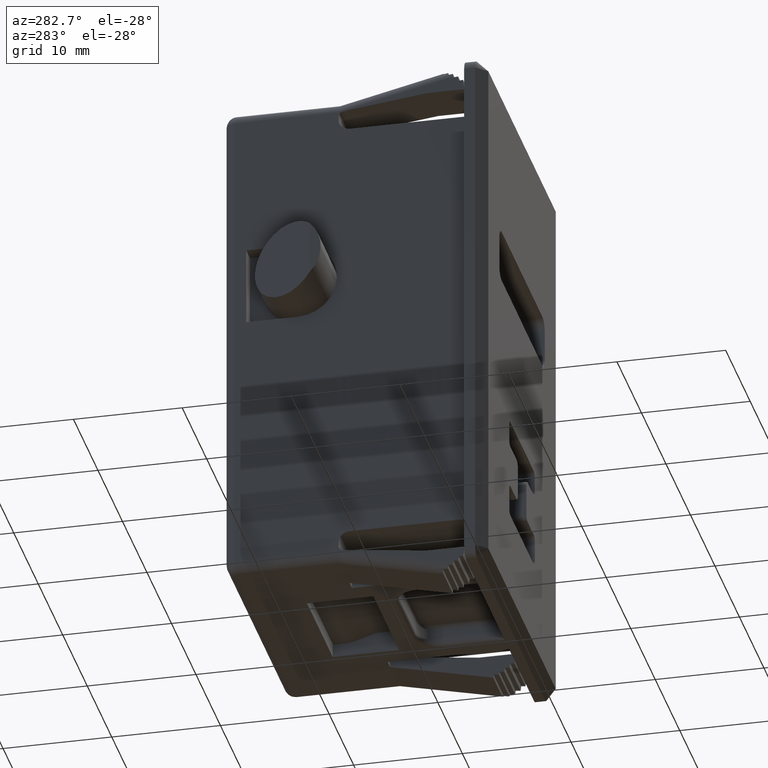
[diagram: clean part render]
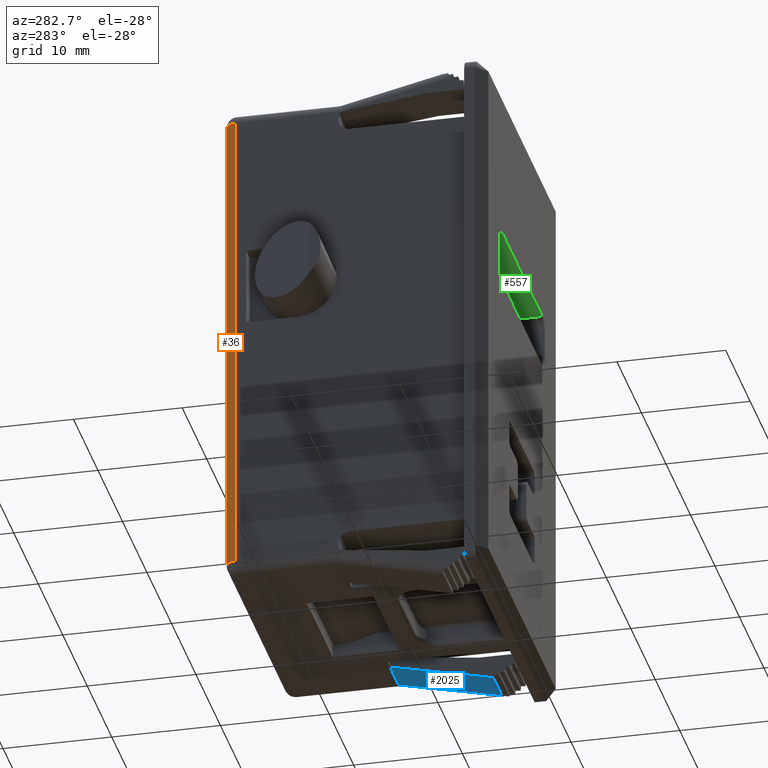
[diagram: same view with three faces highlighted in distinct colors, each labeled with its STEP entity id]
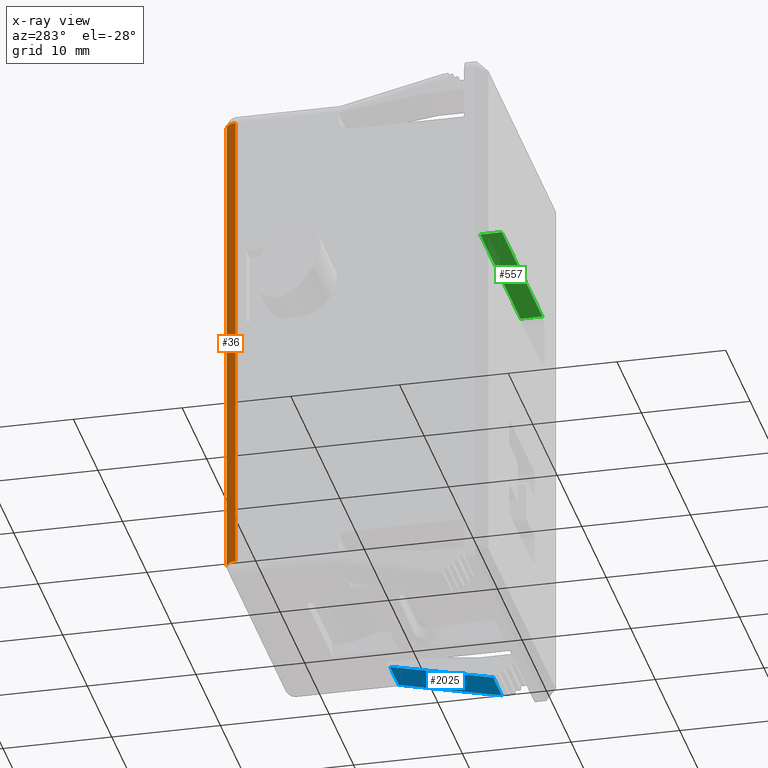
[diagram: x-ray of the same camera — body ghosted, the three highlighted faces saturated]
A machine part, auxiliary view with three faces highlighted in distinct colors.
The next image is the same camera in x-ray (body ghosted, the three faces saturated) — at least one of them is partly hidden behind the body in this view.
Their STEP definitions:

[orange] entity #36 — the highlighted cylindrical surface (edge-blend (fillet) strip) has radius 1 mm, axis along (0, 0, -1).
#36 = ADVANCED_FACE ( 'NONE', ( #1314 ), #5043, .T. ) ;
#46 = AXIS2_PLACEMENT_3D ( 'NONE', #3796, #4432, #3845 ) ;
#291 = VERTEX_POINT ( 'NONE', #1273 ) ;
#326 = EDGE_CURVE ( 'NONE', #291, #6236, #3448, .T. ) ;
#529 = CARTESIAN_POINT ( 'NONE',  ( -11.75000000000000000, 24.49999999999629800, -22.25000000000000000 ) ) ;
#593 = VECTOR ( 'NONE', #5870, 1000.000000000000000 ) ;
#599 = ORIENTED_EDGE ( 'NONE', *, *, #2885, .T. ) ;
#901 = EDGE_CURVE ( 'NONE', #6236, #1045, #4181, .T. ) ;
#1045 = VERTEX_POINT ( 'NONE', #529 ) ;
#1084 = CARTESIAN_POINT ( 'NONE',  ( -11.75000000000000000, 24.49999999999629800, 22.25000000000000000 ) ) ;
#1273 = CARTESIAN_POINT ( 'NONE',  ( -12.75000000000000000, 23.49999999999229800, 22.25000000000000000 ) ) ;
#1314 = FACE_OUTER_BOUND ( 'NONE', #3976, .T. ) ;
#1491 = DIRECTION ( 'NONE',  ( 0.0000000000000000000, 0.0000000000000000000, -1.000000000000000000 ) ) ;
#1620 = CARTESIAN_POINT ( 'NONE',  ( -12.75000000000000000, 23.49999999999229800, -22.25000000000000000 ) ) ;
#2079 = VERTEX_POINT ( 'NONE', #1084 ) ;
#2403 = ORIENTED_EDGE ( 'NONE', *, *, #326, .F. ) ;
#2885 = EDGE_CURVE ( 'NONE', #291, #2079, #6103, .T. ) ;
#3448 = LINE ( 'NONE', #4840, #593 ) ;
#3455 = ORIENTED_EDGE ( 'NONE', *, *, #901, .F. ) ;
#3796 = CARTESIAN_POINT ( 'NONE',  ( -11.75000000000000000, 23.49999999999629800, -22.25000000000000000 ) ) ;
#3845 = DIRECTION ( 'NONE',  ( -1.000000000000000000, 0.0000000000000000000, 0.0000000000000000000 ) ) ;
#3976 = EDGE_LOOP ( 'NONE', ( #599, #5726, #3455, #2403 ) ) ;
#4181 = CIRCLE ( 'NONE', #46, 1.000000000000000900 ) ;
#4432 = DIRECTION ( 'NONE',  ( 0.0000000000000000000, 0.0000000000000000000, -1.000000000000000000 ) ) ;
#4513 = CARTESIAN_POINT ( 'NONE',  ( -11.75000000000000000, 23.49999999999229800, 22.25000000000000000 ) ) ;
#4776 = AXIS2_PLACEMENT_3D ( 'NONE', #4513, #1491, #5030 ) ;
#4784 = VECTOR ( 'NONE', #6361, 1000.000000000000000 ) ;
#4840 = CARTESIAN_POINT ( 'NONE',  ( -12.75000000000000000, 23.49999999999229800, -22.25000000000000000 ) ) ;
#4845 = CARTESIAN_POINT ( 'NONE',  ( -11.75000000000000000, 24.49999999999629800, 0.0000000000000000000 ) ) ;
#5030 = DIRECTION ( 'NONE',  ( -1.000000000000000000, 0.0000000000000000000, 0.0000000000000000000 ) ) ;
#5043 = CYLINDRICAL_SURFACE ( 'NONE', #6308, 1.000000000000000900 ) ;
#5055 = CARTESIAN_POINT ( 'NONE',  ( -11.75000000000000000, 23.49999999999629800, 0.0000000000000000000 ) ) ;
#5150 = EDGE_CURVE ( 'NONE', #1045, #2079, #6125, .T. ) ;
#5726 = ORIENTED_EDGE ( 'NONE', *, *, #5150, .F. ) ;
#5835 = DIRECTION ( 'NONE',  ( 0.0000000000000000000, 0.0000000000000000000, -1.000000000000000000 ) ) ;
#5870 = DIRECTION ( 'NONE',  ( 0.0000000000000000000, 0.0000000000000000000, -1.000000000000000000 ) ) ;
#6103 = CIRCLE ( 'NONE', #4776, 1.000000000000000900 ) ;
#6125 = LINE ( 'NONE', #4845, #4784 ) ;
#6149 = DIRECTION ( 'NONE',  ( -1.000000000000000000, 0.0000000000000000000, 0.0000000000000000000 ) ) ;
#6236 = VERTEX_POINT ( 'NONE', #1620 ) ;
#6308 = AXIS2_PLACEMENT_3D ( 'NONE', #5055, #5835, #6149 ) ;
#6361 = DIRECTION ( 'NONE',  ( 0.0000000000000000000, 0.0000000000000000000, 1.000000000000000000 ) ) ;

[blue] entity #2025 — the highlighted planar face has unit normal (0, 0.224, -0.9746).
#64 = DIRECTION ( 'NONE',  ( 5.486277848008490400E-017, 0.2239942917349005400, -0.9745904561764291400 ) ) ;
#278 = EDGE_LOOP ( 'NONE', ( #893, #628, #5252, #1644 ) ) ;
#425 = LINE ( 'NONE', #504, #5635 ) ;
#504 = CARTESIAN_POINT ( 'NONE',  ( 8.250000000000000000, 14.00000000000912000, -23.25000000002425100 ) ) ;
#628 = ORIENTED_EDGE ( 'NONE', *, *, #1855, .T. ) ;
#782 = CARTESIAN_POINT ( 'NONE',  ( -986.7500000000000000, 4.518192673851060300, -25.42924432047670200 ) ) ;
#893 = ORIENTED_EDGE ( 'NONE', *, *, #2122, .T. ) ;
#1132 = CARTESIAN_POINT ( 'NONE',  ( -986.7500000000000000, 14.00000000000936100, -23.25000000002425100 ) ) ;
#1216 = VECTOR ( 'NONE', #4335, 1000.000000000000000 ) ;
#1246 = CARTESIAN_POINT ( 'NONE',  ( 8.250000000000000000, 14.00000000000912000, -23.25000000002425100 ) ) ;
#1253 = CARTESIAN_POINT ( 'NONE',  ( 8.250000000000000000, 4.518192673850819600, -25.42924432047670200 ) ) ;
#1411 = FACE_OUTER_BOUND ( 'NONE', #278, .T. ) ;
#1644 = ORIENTED_EDGE ( 'NONE', *, *, #2471, .F. ) ;
#1665 = DIRECTION ( 'NONE',  ( 1.000000000000000000, -2.449293598294704900E-016, 0.0000000000000000000 ) ) ;
#1726 = CARTESIAN_POINT ( 'NONE',  ( 11.74999999999796100, 4.518192673850879100, -25.42924432047670200 ) ) ;
#1855 = EDGE_CURVE ( 'NONE', #5506, #2571, #3682, .T. ) ;
#2025 = ADVANCED_FACE ( 'NONE', ( #1411 ), #2073, .T. ) ;
#2073 = PLANE ( 'NONE',  #4398 ) ;
#2122 = EDGE_CURVE ( 'NONE', #2999, #5506, #5989, .T. ) ;
#2346 = VECTOR ( 'NONE', #6269, 1000.000000000000100 ) ;
#2471 = EDGE_CURVE ( 'NONE', #2999, #6446, #425, .T. ) ;
#2571 = VERTEX_POINT ( 'NONE', #5146 ) ;
#2999 = VERTEX_POINT ( 'NONE', #1246 ) ;
#3586 = DIRECTION ( 'NONE',  ( 2.387058165272045900E-016, 0.9745904561764291400, 0.2239942917349005400 ) ) ;
#3645 = CARTESIAN_POINT ( 'NONE',  ( 11.74999999999803900, 14.00000000000912000, -23.25000000002425100 ) ) ;
#3682 = LINE ( 'NONE', #1726, #2346 ) ;
#3745 = LINE ( 'NONE', #782, #1216 ) ;
#3988 = VECTOR ( 'NONE', #1665, 1000.000000000000000 ) ;
#4335 = DIRECTION ( 'NONE',  ( 1.000000000000000000, -2.449293598294704900E-016, 0.0000000000000000000 ) ) ;
#4398 = AXIS2_PLACEMENT_3D ( 'NONE', #5608, #64, #3586 ) ;
#5115 = EDGE_CURVE ( 'NONE', #6446, #2571, #3745, .T. ) ;
#5146 = CARTESIAN_POINT ( 'NONE',  ( 11.74999999999791800, 4.518192673850819600, -25.42924432047670200 ) ) ;
#5252 = ORIENTED_EDGE ( 'NONE', *, *, #5115, .F. ) ;
#5506 = VERTEX_POINT ( 'NONE', #3645 ) ;
#5572 = DIRECTION ( 'NONE',  ( -2.387058165272045900E-016, -0.9745904561764291400, -0.2239942917349005400 ) ) ;
#5608 = CARTESIAN_POINT ( 'NONE',  ( -986.7500000000000000, 14.00000000000936100, -23.25000000002425100 ) ) ;
#5635 = VECTOR ( 'NONE', #5572, 1000.000000000000100 ) ;
#5989 = LINE ( 'NONE', #1132, #3988 ) ;
#6269 = DIRECTION ( 'NONE',  ( -9.058160311928581500E-015, -0.9745904561764291400, -0.2239942917349005400 ) ) ;
#6446 = VERTEX_POINT ( 'NONE', #1253 ) ;

[green] entity #557 — the highlighted planar face has unit normal (0, 0, -1).
#160 = CARTESIAN_POINT ( 'NONE',  ( -8.250000000000090600, 2.000000000009550100, 10.74999999998319900 ) ) ;
#397 = LINE ( 'NONE', #5589, #2917 ) ;
#457 = LINE ( 'NONE', #3318, #2985 ) ;
#557 = ADVANCED_FACE ( 'NONE', ( #2019 ), #4179, .T. ) ;
#775 = VERTEX_POINT ( 'NONE', #1779 ) ;
#1006 = ORIENTED_EDGE ( 'NONE', *, *, #6504, .F. ) ;
#1047 = DIRECTION ( 'NONE',  ( 0.0000000000000000000, -1.000000000000000000, 0.0000000000000000000 ) ) ;
#1107 = CARTESIAN_POINT ( 'NONE',  ( 8.250000000000000000, 0.0000000000000000000, 10.74999999998319900 ) ) ;
#1535 = AXIS2_PLACEMENT_3D ( 'NONE', #6185, #5189, #2202 ) ;
#1638 = CARTESIAN_POINT ( 'NONE',  ( -8.250000000000090600, 0.0000000000000000000, 10.74999999998319900 ) ) ;
#1743 = VERTEX_POINT ( 'NONE', #1107 ) ;
#1779 = CARTESIAN_POINT ( 'NONE',  ( 8.250000000000000000, 2.000000000009550100, 10.74999999998319900 ) ) ;
#2019 = FACE_OUTER_BOUND ( 'NONE', #2070, .T. ) ;
#2070 = EDGE_LOOP ( 'NONE', ( #2555, #5594, #4182, #1006 ) ) ;
#2202 = DIRECTION ( 'NONE',  ( -1.000000000000000000, 0.0000000000000000000, 0.0000000000000000000 ) ) ;
#2555 = ORIENTED_EDGE ( 'NONE', *, *, #2576, .T. ) ;
#2576 = EDGE_CURVE ( 'NONE', #775, #1743, #6516, .T. ) ;
#2917 = VECTOR ( 'NONE', #1047, 1000.000000000000000 ) ;
#2985 = VECTOR ( 'NONE', #3827, 1000.000000000000000 ) ;
#3318 = CARTESIAN_POINT ( 'NONE',  ( -8.250000000000090600, 0.0000000000000000000, 10.74999999998319900 ) ) ;
#3320 = CARTESIAN_POINT ( 'NONE',  ( 0.0000000000000000000, 1.999999999999775100, 10.74999999998319900 ) ) ;
#3389 = VERTEX_POINT ( 'NONE', #160 ) ;
#3539 = LINE ( 'NONE', #3320, #6081 ) ;
#3614 = DIRECTION ( 'NONE',  ( 0.0000000000000000000, -1.000000000000000000, 0.0000000000000000000 ) ) ;
#3812 = VECTOR ( 'NONE', #3614, 1000.000000000000000 ) ;
#3827 = DIRECTION ( 'NONE',  ( 1.000000000000000000, 0.0000000000000000000, 0.0000000000000000000 ) ) ;
#3835 = DIRECTION ( 'NONE',  ( -1.000000000000000000, 0.0000000000000000000, 0.0000000000000000000 ) ) ;
#3943 = EDGE_CURVE ( 'NONE', #6075, #1743, #457, .T. ) ;
#4179 = PLANE ( 'NONE',  #1535 ) ;
#4182 = ORIENTED_EDGE ( 'NONE', *, *, #6184, .F. ) ;
#5189 = DIRECTION ( 'NONE',  ( 0.0000000000000000000, 0.0000000000000000000, -1.000000000000000000 ) ) ;
#5589 = CARTESIAN_POINT ( 'NONE',  ( -8.250000000000090600, 201000.0000000000000, 10.74999999998319900 ) ) ;
#5594 = ORIENTED_EDGE ( 'NONE', *, *, #3943, .F. ) ;
#6075 = VERTEX_POINT ( 'NONE', #1638 ) ;
#6081 = VECTOR ( 'NONE', #3835, 1000.000000000000000 ) ;
#6122 = CARTESIAN_POINT ( 'NONE',  ( 8.250000000000000000, 201000.0000000000000, 10.74999999998319900 ) ) ;
#6184 = EDGE_CURVE ( 'NONE', #3389, #6075, #397, .T. ) ;
#6185 = CARTESIAN_POINT ( 'NONE',  ( -8.250000000000090600, 201000.0000000000000, 10.74999999998319900 ) ) ;
#6504 = EDGE_CURVE ( 'NONE', #775, #3389, #3539, .T. ) ;
#6516 = LINE ( 'NONE', #6122, #3812 ) ;